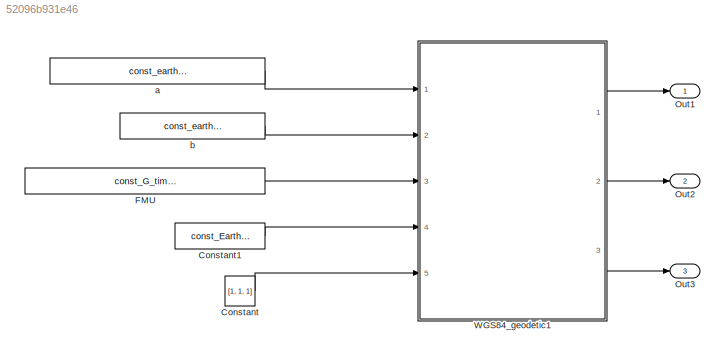
MODEL slx_52096b931e46
KIND model
CONFIG AbsTol = auto
CONFIG EnableMultiTasking = off
CONFIG FixedStep = auto
CONFIG MaxStep = auto
CONFIG MinStep = auto
CONFIG RelTol = 1e-3
CONFIG SampleTimeConstraint = Unconstrained
CONFIG Solver = VariableStepAuto
CONFIG SolverName = VariableStepAuto
CONFIG StartTime = 0.0
CONFIG StopTime = 10.0
WORKSPACE source: MAT-file member
WORKSPACE const_EarthRate = 7.292115486e-05
BLOCK [Constant] Constant
  Value = [1, 1, 1]
BLOCK [Constant] Constant1
  Value = const_EarthRate
BLOCK [Constant] FMU
  Value = const_G_times_earth_mass
BLOCK [Outport] Out1
  IconDisplay = Port number
BLOCK [Outport] Out2
  IconDisplay = Port number
  Port = 2
BLOCK [Outport] Out3
  IconDisplay = Port number
  Port = 3
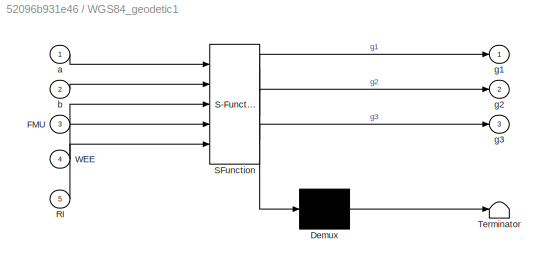
BLOCK [SubSystem] WGS84_geodetic1
  ErrorFcn = Stateflow.Translate.translate
  PermitHierarchicalResolution = ExplicitOnly
  Ports = [5, 3]
  RequestExecContextInheritance = off
  SFBlockType = MATLAB Function
  TreatAsAtomicUnit = on
  Variant = off
BLOCK [Demux] WGS84_geodetic1/ Demux 
  Outputs = 1
  Ports = [1, 1]
BLOCK [S-Function] WGS84_geodetic1/ SFunction 
  EnableBusSupport = on
  FunctionName = sf_sfun
  PortCounts = [5 4]
  Ports = [5, 4]
  SFcnIsStateOwnerBlock = off
  SFunctionDeploymentMode = off
  Tag = Stateflow S-Function ava3 53
BLOCK [Terminator] WGS84_geodetic1/ Terminator 
BLOCK [Inport] WGS84_geodetic1/FMU
  IconDisplay = Port number
  Port = 3
BLOCK [Inport] WGS84_geodetic1/RI
  IconDisplay = Port number
  Port = 5
BLOCK [Inport] WGS84_geodetic1/WEE
  IconDisplay = Port number
  Port = 4
BLOCK [Inport] WGS84_geodetic1/a
  IconDisplay = Port number
BLOCK [Inport] WGS84_geodetic1/b
  IconDisplay = Port number
  Port = 2
BLOCK [Outport] WGS84_geodetic1/g1
  IconDisplay = Port number
BLOCK [Outport] WGS84_geodetic1/g2
  IconDisplay = Port number
  Port = 2
BLOCK [Outport] WGS84_geodetic1/g3
  IconDisplay = Port number
  Port = 3
BLOCK [Constant] a
  Value = const_earth_equatorial_radius
BLOCK [Constant] b
  Value = const_earth_polar_radius
LINE Constant1:1 -> WGS84_geodetic1:4
LINE Constant:1 -> WGS84_geodetic1:5
LINE FMU:1 -> WGS84_geodetic1:3
LINE WGS84_geodetic1:1 -> Out1:1
LINE WGS84_geodetic1:2 -> Out2:1
LINE WGS84_geodetic1:3 -> Out3:1
LINE a:1 -> WGS84_geodetic1:1
LINE b:1 -> WGS84_geodetic1:2
CHART WGS84_geodetic1 states=1 transitions=1
  STATE_LABEL 'eML_blk_kernel()'
  STATE_LABEL 'SCRIPT:\n%======================================================================C\n\nfunction [g1,g2,g3] = wgs84(a, b, FMU, WEE, RI)\n%#codegen\n%(earth equatorial radius, polar radius, G*m_earth, earth rotation rate, inertial position vector)\n%(output is acceleration)\n%       SUBROUTINE WGS84 ( a, b, FMU, WEE, RI, g )\n%======================================================================C\n%          ...<+3409ch>'
